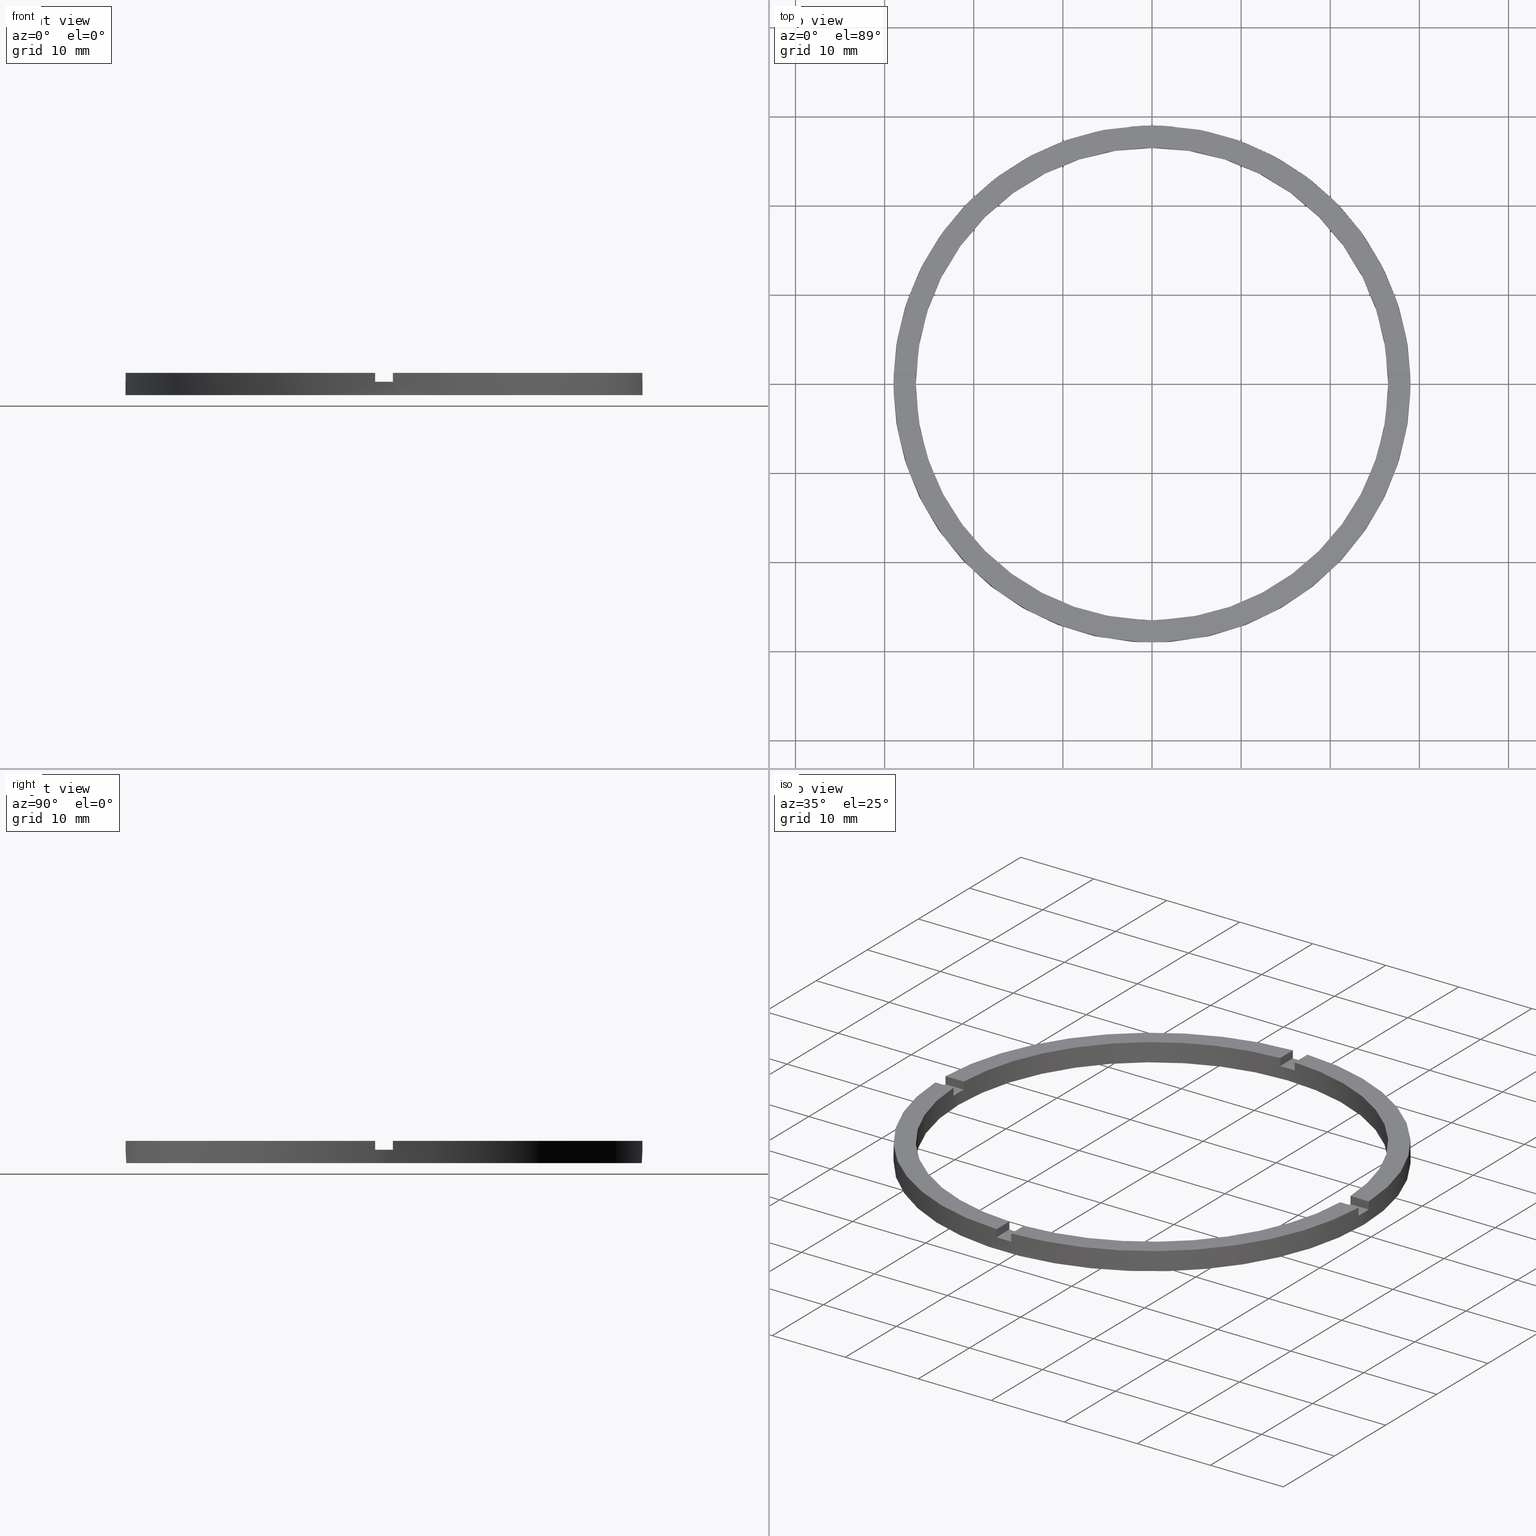
[diagram: canonical four-view strip — front | top / right | iso, engineering-drawing reading convention]
A machine part, canonical four-view strip (front | top / right | iso — engineering-drawing reading convention). The complete STEP part file that produces these views, byte-faithful:
ISO-10303-21;
HEADER;
FILE_DESCRIPTION (( 'STEP AP203' ),
    '1' );
FILE_NAME ('514120.step',
    '2024-12-26T02:39:25',
    ( 'MSI' ),
    ( '' ),
    'SwSTEP 2.0',
    'SolidWorks 2020',
    '' );
FILE_SCHEMA (( 'CONFIG_CONTROL_DESIGN' ));
ENDSEC;

DATA;
#1 = CARTESIAN_POINT ( 'NONE',  ( 0.000000000000000000, 0.000000000000000000, 1.500000000000000000 ) ) ;
#2 = EDGE_LOOP ( 'NONE', ( #548, #67, #28, #5 ) ) ;
#3 = PLANE ( 'NONE',  #770 ) ;
#4 = ORIENTED_EDGE ( 'NONE', *, *, #156, .T. ) ;
#5 = ORIENTED_EDGE ( 'NONE', *, *, #708, .F. ) ;
#6 = CARTESIAN_POINT ( 'NONE',  ( 0.000000000000000000, 0.000000000000000000, 2.500000000000000000 ) ) ;
#7 = ORIENTED_EDGE ( 'NONE', *, *, #596, .F. ) ;
#8 = CARTESIAN_POINT ( 'NONE',  ( 19.00000000000000000, 0.9999999999998427924, 1.500000000000000000 ) ) ;
#9 = DIRECTION ( 'NONE',  ( 1.301042606982605567E-16, -1.000000000000000000, 0.000000000000000000 ) ) ;
#10 = VERTEX_POINT ( 'NONE', #239 ) ;
#11 = DIRECTION ( 'NONE',  ( -0.000000000000000000, -0.000000000000000000, -1.000000000000000000 ) ) ;
#12 = AXIS2_PLACEMENT_3D ( 'NONE', #219, #165, #394 ) ;
#13 = EDGE_LOOP ( 'NONE', ( #38, #550, #335, #295 ) ) ;
#14 = ORIENTED_EDGE ( 'NONE', *, *, #747, .F. ) ;
#15 = DIRECTION ( 'NONE',  ( -1.000000000000000000, -1.301042606982605567E-16, 0.000000000000000000 ) ) ;
#16 = EDGE_LOOP ( 'NONE', ( #472, #334, #20, #308 ) ) ;
#17 = DIRECTION ( 'NONE',  ( 1.734723475976807341E-16, -1.000000000000000000, 0.000000000000000000 ) ) ;
#18 = ORIENTED_EDGE ( 'NONE', *, *, #492, .T. ) ;
#19 = DIRECTION ( 'NONE',  ( -0.000000000000000000, -0.000000000000000000, -1.000000000000000000 ) ) ;
#20 = ORIENTED_EDGE ( 'NONE', *, *, #119, .T. ) ;
#21 = EDGE_CURVE ( 'NONE', #65, #558, #81, .T. ) ;
#22 = EDGE_CURVE ( 'NONE', #461, #558, #599, .T. ) ;
#23 = ORIENTED_EDGE ( 'NONE', *, *, #641, .T. ) ;
#24 = ORIENTED_EDGE ( 'NONE', *, *, #453, .F. ) ;
#25 = VERTEX_POINT ( 'NONE', #476 ) ;
#26 = CARTESIAN_POINT ( 'NONE',  ( -19.00000000000018829, 0.9999999999999744649, 2.500000000000000000 ) ) ;
#27 = AXIS2_PLACEMENT_3D ( 'NONE', #452, #257, #744 ) ;
#28 = ORIENTED_EDGE ( 'NONE', *, *, #314, .F. ) ;
#29 = ORIENTED_EDGE ( 'NONE', *, *, #119, .F. ) ;
#30 = ORIENTED_EDGE ( 'NONE', *, *, #301, .F. ) ;
#31 = EDGE_LOOP ( 'NONE', ( #608, #46, #29, #534 ) ) ;
#32 = ORIENTED_EDGE ( 'NONE', *, *, #314, .T. ) ;
#33 = ORIENTED_EDGE ( 'NONE', *, *, #21, .T. ) ;
#34 = EDGE_CURVE ( 'NONE', #287, #344, #604, .T. ) ;
#35 = DIRECTION ( 'NONE',  ( -1.000000000000000000, -4.336808689942018352E-17, 0.000000000000000000 ) ) ;
#36 = ORIENTED_EDGE ( 'NONE', *, *, #100, .F. ) ;
#37 = CARTESIAN_POINT ( 'NONE',  ( 29.00000000000000000, 3.551475717527324030E-15, 2.500000000000000000 ) ) ;
#38 = ORIENTED_EDGE ( 'NONE', *, *, #529, .T. ) ;
#39 = ADVANCED_BREP_SHAPE_REPRESENTATION ( '514120', ( #370, #511 ), #519 ) ;
#40 = ADVANCED_FACE ( 'NONE', ( #353 ), #227, .T. ) ;
#41 = CARTESIAN_POINT ( 'NONE',  ( 28.98275349237887255, -1.000000000000156763, 1.500000000000000000 ) ) ;
#42 = CARTESIAN_POINT ( 'NONE',  ( 0.000000000000000000, 0.000000000000000000, 2.500000000000000000 ) ) ;
#43 = VERTEX_POINT ( 'NONE', #41 ) ;
#44 = EDGE_CURVE ( 'NONE', #445, #598, #85, .T. ) ;
#45 = ORIENTED_EDGE ( 'NONE', *, *, #249, .T. ) ;
#46 = ORIENTED_EDGE ( 'NONE', *, *, #229, .T. ) ;
#47 = CARTESIAN_POINT ( 'NONE',  ( 0.000000000000000000, 0.000000000000000000, 2.500000000000000000 ) ) ;
#48 = ORIENTED_EDGE ( 'NONE', *, *, #747, .T. ) ;
#49 = DIRECTION ( 'NONE',  ( 0.000000000000000000, 0.000000000000000000, 1.000000000000000000 ) ) ;
#50 = ORIENTED_EDGE ( 'NONE', *, *, #147, .T. ) ;
#51 = VERTEX_POINT ( 'NONE', #469 ) ;
#52 = SECURITY_CLASSIFICATION ( '', '', #765 ) ;
#53 = EDGE_LOOP ( 'NONE', ( #532, #315, #554, #477 ) ) ;
#54 = DIRECTION ( 'NONE',  ( 0.000000000000000000, 0.000000000000000000, 1.000000000000000000 ) ) ;
#55 = ORIENTED_EDGE ( 'NONE', *, *, #773, .F. ) ;
#56 = AXIS2_PLACEMENT_3D ( 'NONE', #284, #293, #769 ) ;
#57 = DIRECTION ( 'NONE',  ( 1.000000000000000000, 1.734723475976807341E-16, -0.000000000000000000 ) ) ;
#58 = ORIENTED_EDGE ( 'NONE', *, *, #506, .T. ) ;
#59 = VERTEX_POINT ( 'NONE', #634 ) ;
#60 = ORIENTED_EDGE ( 'NONE', *, *, #493, .F. ) ;
#61 = CARTESIAN_POINT ( 'NONE',  ( -26.50000000000000355, 0.000000000000000000, 2.500000000000000000 ) ) ;
#62 = VERTEX_POINT ( 'NONE', #573 ) ;
#63 = VERTEX_POINT ( 'NONE', #640 ) ;
#64 = ORIENTED_EDGE ( 'NONE', *, *, #290, .T. ) ;
#65 = VERTEX_POINT ( 'NONE', #567 ) ;
#66 = AXIS2_PLACEMENT_3D ( 'NONE', #414, #274, #749 ) ;
#67 = ORIENTED_EDGE ( 'NONE', *, *, #404, .T. ) ;
#68 = CARTESIAN_POINT ( 'NONE',  ( 0.000000000000000000, 0.000000000000000000, 0.000000000000000000 ) ) ;
#69 = ORIENTED_EDGE ( 'NONE', *, *, #767, .F. ) ;
#70 = ORIENTED_EDGE ( 'NONE', *, *, #767, .T. ) ;
#71 = ORIENTED_EDGE ( 'NONE', *, *, #197, .F. ) ;
#72 = ORIENTED_EDGE ( 'NONE', *, *, #44, .F. ) ;
#73 = CARTESIAN_POINT ( 'NONE',  ( 0.000000000000000000, 0.000000000000000000, 0.000000000000000000 ) ) ;
#74 = DIRECTION ( 'NONE',  ( 1.000000000000000000, 0.000000000000000000, 0.000000000000000000 ) ) ;
#75 = VERTEX_POINT ( 'NONE', #277 ) ;
#76 = PERSON ( 'δָ��', 'δָ��', 'δָ��', ('δָ��'), ('δָ��'), ('δָ��') ) ;
#77 = ORIENTED_EDGE ( 'NONE', *, *, #301, .T. ) ;
#78 = AXIS2_PLACEMENT_3D ( 'NONE', #382, #450, #498 ) ;
#79 = ORIENTED_EDGE ( 'NONE', *, *, #333, .F. ) ;
#80 = CARTESIAN_POINT ( 'NONE',  ( 29.00000000000000000, 3.551475717527324030E-15, 1.500000000000000000 ) ) ;
#81 = CIRCLE ( 'NONE', #56, 26.50000000000000355 ) ;
#82 = DIRECTION ( 'NONE',  ( 0.000000000000000000, 0.000000000000000000, 1.000000000000000000 ) ) ;
#83 = ORIENTED_EDGE ( 'NONE', *, *, #569, .T. ) ;
#84 = ORIENTED_EDGE ( 'NONE', *, *, #249, .F. ) ;
#85 = LINE ( 'NONE', #515, #347 ) ;
#86 = VECTOR ( 'NONE', #194, 1000.000000000000000 ) ;
#87 = CARTESIAN_POINT ( 'NONE',  ( 26.48112535373071807, -1.000000000000156986, 2.500000000000000000 ) ) ;
#88 = EDGE_LOOP ( 'NONE', ( #738, #728, #557, #526 ) ) ;
#89 = FACE_OUTER_BOUND ( 'NONE', #223, .T. ) ;
#90 = PLANE ( 'NONE',  #152 ) ;
#91 = ORIENTED_EDGE ( 'NONE', *, *, #776, .T. ) ;
#92 = PLANE ( 'NONE',  #636 ) ;
#93 = ORIENTED_EDGE ( 'NONE', *, *, #783, .T. ) ;
#94 = DIRECTION ( 'NONE',  ( -1.301042606982605567E-16, 1.000000000000000000, -0.000000000000000000 ) ) ;
#95 = CARTESIAN_POINT ( 'NONE',  ( -1.000000000000026645, 28.98275349237887610, 1.500000000000000000 ) ) ;
#96 = CC_DESIGN_PERSON_AND_ORGANIZATION_ASSIGNMENT ( #630, #732, ( #292 ) ) ;
#97 = EDGE_CURVE ( 'NONE', #332, #778, #601, .T. ) ;
#98 = DIRECTION ( 'NONE',  ( 1.301042606982605567E-16, -1.000000000000000000, 0.000000000000000000 ) ) ;
#99 = LINE ( 'NONE', #753, #368 ) ;
#100 = EDGE_CURVE ( 'NONE', #445, #568, #603, .T. ) ;
#101 = APPROVAL_PERSON_ORGANIZATION ( #112, #306, #202 ) ;
#102 = CARTESIAN_POINT ( 'NONE',  ( 0.000000000000000000, 0.000000000000000000, 2.500000000000000000 ) ) ;
#103 = COORDINATED_UNIVERSAL_TIME_OFFSET ( 8, 0, .AHEAD. ) ;
#104 = AXIS2_PLACEMENT_3D ( 'NONE', #1, #216, #400 ) ;
#105 = LINE ( 'NONE', #507, #642 ) ;
#106 = AXIS2_PLACEMENT_3D ( 'NONE', #541, #685, #724 ) ;
#107 = CALENDAR_DATE ( 2024, 26, 12 ) ;
#108 = DIRECTION ( 'NONE',  ( -0.000000000000000000, -1.000000000000000000, -0.000000000000000000 ) ) ;
#109 = LINE ( 'NONE', #467, #386 ) ;
#110 = COORDINATED_UNIVERSAL_TIME_OFFSET ( 8, 0, .AHEAD. ) ;
#111 = DIRECTION ( 'NONE',  ( 1.000000000000000000, 0.000000000000000000, 0.000000000000000000 ) ) ;
#112 = PERSON_AND_ORGANIZATION ( #76, #115 ) ;
#113 = CIRCLE ( 'NONE', #564, 26.50000000000000355 ) ;
#114 = DIRECTION ( 'NONE',  ( 1.301042606982605567E-16, -1.000000000000000000, 0.000000000000000000 ) ) ;
#115 = ORGANIZATION ( 'δָ��', 'δָ��', '' ) ;
#116 = ADVANCED_FACE ( 'NONE', ( #89 ), #150, .T. ) ;
#117 = LOCAL_TIME ( 10, 39, 25.00000000000000000, #635 ) ;
#118 = CARTESIAN_POINT ( 'NONE',  ( 0.9999999999999733546, 26.48112535373072518, 2.500000000000000000 ) ) ;
#119 = EDGE_CURVE ( 'NONE', #303, #778, #651, .T. ) ;
#120 = LINE ( 'NONE', #755, #372 ) ;
#121 = APPROVAL_ROLE ( '' ) ;
#122 = APPROVAL_PERSON_ORGANIZATION ( #365, #457, #121 ) ;
#123 = DIRECTION ( 'NONE',  ( 0.000000000000000000, 0.000000000000000000, 1.000000000000000000 ) ) ;
#124 = ADVANCED_FACE ( 'NONE', ( #135 ), #588, .F. ) ;
#125 = DATE_AND_TIME ( #618, #381 ) ;
#126 = EDGE_CURVE ( 'NONE', #454, #558, #657, .T. ) ;
#127 = PRODUCT_DEFINITION_FORMATION_WITH_SPECIFIED_SOURCE ( '�κ�', '', #146, .NOT_KNOWN. ) ;
#128 = CIRCLE ( 'NONE', #600, 26.50000000000000355 ) ;
#129 = DIRECTION ( 'NONE',  ( 0.000000000000000000, 0.000000000000000000, 1.000000000000000000 ) ) ;
#130 = CARTESIAN_POINT ( 'NONE',  ( 0.9999999999998391287, -19.00000000000018474, 1.500000000000000000 ) ) ;
#131 = CIRCLE ( 'NONE', #509, 29.00000000000000000 ) ;
#132 = DATE_TIME_ROLE ( 'classification_date' ) ;
#133 = CIRCLE ( 'NONE', #663, 29.00000000000000000 ) ;
#134 = DIRECTION ( 'NONE',  ( 1.000000000000000000, 0.000000000000000000, 0.000000000000000000 ) ) ;
#135 = FACE_OUTER_BOUND ( 'NONE', #88, .T. ) ;
#136 = VECTOR ( 'NONE', #464, 1000.000000000000000 ) ;
#137 = CC_DESIGN_PERSON_AND_ORGANIZATION_ASSIGNMENT ( #159, #447, ( #127 ) ) ;
#138 = VECTOR ( 'NONE', #177, 1000.000000000000000 ) ;
#139 = LINE ( 'NONE', #704, #143 ) ;
#140 = CARTESIAN_POINT ( 'NONE',  ( 0.9999999999998402389, -26.48112535373072873, 2.500000000000000000 ) ) ;
#141 = AXIS2_PLACEMENT_3D ( 'NONE', #218, #646, #338 ) ;
#142 = FACE_OUTER_BOUND ( 'NONE', #16, .T. ) ;
#143 = VECTOR ( 'NONE', #250, 1000.000000000000000 ) ;
#144 = DIRECTION ( 'NONE',  ( 1.000000000000000000, 0.000000000000000000, 0.000000000000000000 ) ) ;
#145 = VECTOR ( 'NONE', #652, 1000.000000000000000 ) ;
#146 = PRODUCT ( '514120', '514120', '', ( #585 ) ) ;
#147 = EDGE_CURVE ( 'NONE', #466, #62, #653, .T. ) ;
#148 = FACE_OUTER_BOUND ( 'NONE', #340, .T. ) ;
#149 = PLANE ( 'NONE',  #495 ) ;
#150 = CYLINDRICAL_SURFACE ( 'NONE', #590, 29.00000000000000000 ) ;
#151 = CIRCLE ( 'NONE', #671, 29.00000000000000000 ) ;
#152 = AXIS2_PLACEMENT_3D ( 'NONE', #711, #625, #35 ) ;
#153 = LINE ( 'NONE', #245, #415 ) ;
#154 = LINE ( 'NONE', #242, #662 ) ;
#155 = CARTESIAN_POINT ( 'NONE',  ( -1.000000000000159650, -28.98275349237887255, 2.500000000000000000 ) ) ;
#156 = EDGE_CURVE ( 'NONE', #25, #707, #169, .T. ) ;
#157 = LINE ( 'NONE', #735, #668 ) ;
#158 = CYLINDRICAL_SURFACE ( 'NONE', #380, 26.50000000000000355 ) ;
#159 = PERSON_AND_ORGANIZATION ( #76, #115 ) ;
#160 = PLANE ( 'NONE',  #436 ) ;
#161 = DIRECTION ( 'NONE',  ( 0.000000000000000000, 0.000000000000000000, 1.000000000000000000 ) ) ;
#162 = LINE ( 'NONE', #268, #679 ) ;
#163 = EDGE_CURVE ( 'NONE', #25, #609, #390, .T. ) ;
#164 = VECTOR ( 'NONE', #546, 1000.000000000000000 ) ;
#165 = DIRECTION ( 'NONE',  ( 0.000000000000000000, -0.000000000000000000, 1.000000000000000000 ) ) ;
#166 = VECTOR ( 'NONE', #187, 1000.000000000000000 ) ;
#167 = FACE_OUTER_BOUND ( 'NONE', #196, .T. ) ;
#168 = APPLICATION_CONTEXT ( 'configuration controlled 3d designs of mechanical parts and assemblies' ) ;
#169 = LINE ( 'NONE', #118, #655 ) ;
#170 = PERSON_AND_ORGANIZATION ( #76, #115 ) ;
#171 = DIRECTION ( 'NONE',  ( 0.000000000000000000, 0.000000000000000000, 1.000000000000000000 ) ) ;
#172 = VECTOR ( 'NONE', #9, 1000.000000000000000 ) ;
#173 = VECTOR ( 'NONE', #339, 1000.000000000000000 ) ;
#174 = VECTOR ( 'NONE', #371, 1000.000000000000000 ) ;
#175 = VECTOR ( 'NONE', #675, 1000.000000000000000 ) ;
#176 = PERSON_AND_ORGANIZATION ( #76, #115 ) ;
#177 = DIRECTION ( 'NONE',  ( -1.000000000000000000, -1.734723475976807341E-16, 0.000000000000000000 ) ) ;
#178 = FACE_OUTER_BOUND ( 'NONE', #266, .T. ) ;
#179 = FACE_OUTER_BOUND ( 'NONE', #459, .T. ) ;
#180 = LINE ( 'NONE', #777, #174 ) ;
#181 = DIRECTION ( 'NONE',  ( 1.000000000000000000, 1.734723475976807341E-16, 0.000000000000000000 ) ) ;
#182 = VECTOR ( 'NONE', #614, 1000.000000000000000 ) ;
#183 = CIRCLE ( 'NONE', #243, 29.00000000000000000 ) ;
#184 = CIRCLE ( 'NONE', #742, 29.00000000000000000 ) ;
#185 = EDGE_CURVE ( 'NONE', #461, #683, #654, .T. ) ;
#186 = AXIS2_PLACEMENT_3D ( 'NONE', #471, #17, #181 ) ;
#187 = DIRECTION ( 'NONE',  ( 0.000000000000000000, 1.000000000000000000, 0.000000000000000000 ) ) ;
#188 = CARTESIAN_POINT ( 'NONE',  ( 26.48112535373072873, 0.9999999999998430145, 2.500000000000000000 ) ) ;
#189 = VERTEX_POINT ( 'NONE', #359 ) ;
#190 = CARTESIAN_POINT ( 'NONE',  ( 0.9999999999999733546, 28.98275349237887966, 2.500000000000000000 ) ) ;
#191 = EDGE_CURVE ( 'NONE', #571, #598, #409, .T. ) ;
#192 = CARTESIAN_POINT ( 'NONE',  ( -1.000000000000160982, -19.00000000000018474, 1.500000000000000000 ) ) ;
#193 = AXIS2_PLACEMENT_3D ( 'NONE', #73, #377, #134 ) ;
#194 = DIRECTION ( 'NONE',  ( -0.000000000000000000, -0.000000000000000000, -1.000000000000000000 ) ) ;
#195 = DIRECTION ( 'NONE',  ( -1.000000000000000000, 0.000000000000000000, 0.000000000000000000 ) ) ;
#196 = EDGE_LOOP ( 'NONE', ( #544, #591, #737, #342, #316, #48, #473, #522, #291, #462, #312, #271 ) ) ;
#197 = EDGE_CURVE ( 'NONE', #707, #200, #670, .T. ) ;
#198 = CARTESIAN_POINT ( 'NONE',  ( -19.00000000000018829, -1.000000000000025535, 2.500000000000000000 ) ) ;
#199 = VERTEX_POINT ( 'NONE', #428 ) ;
#200 = VERTEX_POINT ( 'NONE', #190 ) ;
#201 = CARTESIAN_POINT ( 'NONE',  ( 0.000000000000000000, 0.000000000000000000, 2.500000000000000000 ) ) ;
#202 = APPROVAL_ROLE ( '' ) ;
#203 = DIRECTION ( 'NONE',  ( -0.000000000000000000, -1.000000000000000000, -0.000000000000000000 ) ) ;
#204 = EDGE_LOOP ( 'NONE', ( #555, #36, #270, #50 ) ) ;
#205 = EDGE_LOOP ( 'NONE', ( #71, #55, #60, #577 ) ) ;
#206 = VERTEX_POINT ( 'NONE', #285 ) ;
#207 = CARTESIAN_POINT ( 'NONE',  ( -1.000000000000026645, 26.48112535373072163, 2.500000000000000000 ) ) ;
#208 = CARTESIAN_POINT ( 'NONE',  ( 0.9999999999999733546, 19.00000000000000355, 1.500000000000000000 ) ) ;
#209 = AXIS2_PLACEMENT_3D ( 'NONE', #691, #501, #553 ) ;
#210 = DIRECTION ( 'NONE',  ( 1.000000000000000000, 0.000000000000000000, 0.000000000000000000 ) ) ;
#211 = AXIS2_PLACEMENT_3D ( 'NONE', #47, #54, #656 ) ;
#212 = DIRECTION ( 'NONE',  ( 1.000000000000000000, 0.000000000000000000, 0.000000000000000000 ) ) ;
#213 = CARTESIAN_POINT ( 'NONE',  ( 28.98275349237888321, 0.9999999999998432365, 2.500000000000000000 ) ) ;
#214 = CARTESIAN_POINT ( 'NONE',  ( 0.9999999999999733546, 26.48112535373072518, 2.500000000000000000 ) ) ;
#215 = ADVANCED_FACE ( 'NONE', ( #167 ), #158, .F. ) ;
#216 = DIRECTION ( 'NONE',  ( 0.000000000000000000, 0.000000000000000000, 1.000000000000000000 ) ) ;
#217 =( NAMED_UNIT ( * ) SI_UNIT ( $, .STERADIAN. ) SOLID_ANGLE_UNIT ( ) );
#218 = CARTESIAN_POINT ( 'NONE',  ( 0.000000000000000000, 0.000000000000000000, 2.500000000000000000 ) ) ;
#219 = CARTESIAN_POINT ( 'NONE',  ( 0.000000000000000000, 0.000000000000000000, 1.500000000000000000 ) ) ;
#220 =( NAMED_UNIT ( * ) PLANE_ANGLE_UNIT ( ) SI_UNIT ( $, .RADIAN. ) );
#221 = DIRECTION ( 'NONE',  ( 1.000000000000000000, 0.000000000000000000, -0.000000000000000000 ) ) ;
#222 = EDGE_CURVE ( 'NONE', #206, #454, #131, .T. ) ;
#223 = EDGE_LOOP ( 'NONE', ( #79, #531, #70, #594, #299, #7, #313, #597, #283, #337, #93, #589 ) ) ;
#224 = DIRECTION ( 'NONE',  ( 0.000000000000000000, 0.000000000000000000, 1.000000000000000000 ) ) ;
#225 = EDGE_LOOP ( 'NONE', ( #281, #58, #576, #543, #33, #539, #582, #545, #352, #72, #574, #30 ) ) ;
#226 = ADVANCED_FACE ( 'NONE', ( #417 ), #255, .T. ) ;
#227 = PLANE ( 'NONE',  #542 ) ;
#228 = CARTESIAN_POINT ( 'NONE',  ( -28.98275349237887966, 0.9999999999999726885, 2.500000000000000000 ) ) ;
#229 = EDGE_CURVE ( 'NONE', #189, #778, #133, .T. ) ;
#230 = SHAPE_DEFINITION_REPRESENTATION ( #478, #39 ) ;
#231 = DIRECTION ( 'NONE',  ( -1.000000000000000000, 0.000000000000000000, 0.000000000000000000 ) ) ;
#232 = CARTESIAN_POINT ( 'NONE',  ( 0.000000000000000000, 0.000000000000000000, 2.500000000000000000 ) ) ;
#233 = PLANE ( 'NONE',  #211 ) ;
#234 = PRODUCT_RELATED_PRODUCT_CATEGORY ( 'detail', '', ( #146 ) ) ;
#235 = DATE_AND_TIME ( #762, #488 ) ;
#236 = PERSON_AND_ORGANIZATION ( #76, #115 ) ;
#237 = ADVANCED_FACE ( 'NONE', ( #408 ), #743, .F. ) ;
#238 = AXIS2_PLACEMENT_3D ( 'NONE', #232, #774, #278 ) ;
#239 = CARTESIAN_POINT ( 'NONE',  ( -1.000000000000159872, -26.48112535373071807, 1.500000000000000000 ) ) ;
#240 = CARTESIAN_POINT ( 'NONE',  ( 0.9999999999999733546, 19.00000000000000355, 2.500000000000000000 ) ) ;
#241 = DIRECTION ( 'NONE',  ( 1.000000000000000000, 0.000000000000000000, 0.000000000000000000 ) ) ;
#242 = CARTESIAN_POINT ( 'NONE',  ( -26.48112535373072518, 0.9999999999999731326, 2.500000000000000000 ) ) ;
#243 = AXIS2_PLACEMENT_3D ( 'NONE', #297, #367, #483 ) ;
#244 = DATE_AND_TIME ( #490, #500 ) ;
#245 = CARTESIAN_POINT ( 'NONE',  ( 19.00000000000000000, -1.000000000000157208, 1.500000000000000000 ) ) ;
#246 = CARTESIAN_POINT ( 'NONE',  ( 19.00000000000000000, -1.000000000000157208, 2.500000000000000000 ) ) ;
#247 = DIRECTION ( 'NONE',  ( 0.000000000000000000, 0.000000000000000000, 1.000000000000000000 ) ) ;
#248 = AXIS2_PLACEMENT_3D ( 'NONE', #102, #649, #267 ) ;
#249 = EDGE_CURVE ( 'NONE', #683, #305, #416, .T. ) ;
#250 = DIRECTION ( 'NONE',  ( 0.000000000000000000, 0.000000000000000000, 1.000000000000000000 ) ) ;
#251 = DIRECTION ( 'NONE',  ( 0.000000000000000000, 0.000000000000000000, 1.000000000000000000 ) ) ;
#252 = EDGE_CURVE ( 'NONE', #75, #59, #420, .T. ) ;
#253 = ORIENTED_EDGE ( 'NONE', *, *, #547, .F. ) ;
#254 = CC_DESIGN_APPROVAL ( #457, ( #127 ) ) ;
#255 = PLANE ( 'NONE',  #209 ) ;
#256 = ORIENTED_EDGE ( 'NONE', *, *, #197, .T. ) ;
#257 = DIRECTION ( 'NONE',  ( 0.000000000000000000, 0.000000000000000000, 1.000000000000000000 ) ) ;
#258 = PERSON_AND_ORGANIZATION_ROLE ( 'design_owner' ) ;
#259 = CARTESIAN_POINT ( 'NONE',  ( 26.50000000000000355, 3.245314017740486554E-15, 0.000000000000000000 ) ) ;
#260 = CARTESIAN_POINT ( 'NONE',  ( -1.000000000000159872, -26.48112535373071807, 2.500000000000000000 ) ) ;
#261 = CC_DESIGN_DATE_AND_TIME_ASSIGNMENT ( #617, #592, ( #292 ) ) ;
#262 = DIRECTION ( 'NONE',  ( 1.000000000000000000, 0.000000000000000000, 0.000000000000000000 ) ) ;
#263 = AXIS2_PLACEMENT_3D ( 'NONE', #130, #763, #474 ) ;
#264 = DIRECTION ( 'NONE',  ( -0.000000000000000000, -0.000000000000000000, -1.000000000000000000 ) ) ;
#265 = AXIS2_PLACEMENT_3D ( 'NONE', #317, #684, #210 ) ;
#266 = EDGE_LOOP ( 'NONE', ( #276, #4, #256, #320 ) ) ;
#267 = DIRECTION ( 'NONE',  ( 1.000000000000000000, 0.000000000000000000, -0.000000000000000000 ) ) ;
#268 = CARTESIAN_POINT ( 'NONE',  ( -19.00000000000018829, 0.9999999999999744649, 1.500000000000000000 ) ) ;
#269 = ORIENTED_EDGE ( 'NONE', *, *, #783, .F. ) ;
#270 = ORIENTED_EDGE ( 'NONE', *, *, #725, .F. ) ;
#271 = ORIENTED_EDGE ( 'NONE', *, *, #432, .F. ) ;
#272 = ADVANCED_FACE ( 'NONE', ( #411 ), #92, .T. ) ;
#273 = VERTEX_POINT ( 'NONE', #259 ) ;
#274 = DIRECTION ( 'NONE',  ( -0.000000000000000000, -0.000000000000000000, -1.000000000000000000 ) ) ;
#275 = DIRECTION ( 'NONE',  ( -0.000000000000000000, -0.000000000000000000, -1.000000000000000000 ) ) ;
#276 = ORIENTED_EDGE ( 'NONE', *, *, #163, .F. ) ;
#277 = CARTESIAN_POINT ( 'NONE',  ( -1.000000000000026645, 26.48112535373072163, 2.500000000000000000 ) ) ;
#278 = DIRECTION ( 'NONE',  ( 1.000000000000000000, 0.000000000000000000, 0.000000000000000000 ) ) ;
#279 = ORIENTED_EDGE ( 'NONE', *, *, #758, .T. ) ;
#280 = ORIENTED_EDGE ( 'NONE', *, *, #499, .F. ) ;
#281 = ORIENTED_EDGE ( 'NONE', *, *, #524, .T. ) ;
#282 = CARTESIAN_POINT ( 'NONE',  ( 0.000000000000000000, 0.000000000000000000, 1.500000000000000000 ) ) ;
#283 = ORIENTED_EDGE ( 'NONE', *, *, #696, .T. ) ;
#284 = CARTESIAN_POINT ( 'NONE',  ( 0.000000000000000000, 0.000000000000000000, 1.500000000000000000 ) ) ;
#285 = CARTESIAN_POINT ( 'NONE',  ( -29.00000000000000000, 0.000000000000000000, 1.500000000000000000 ) ) ;
#286 = ORIENTED_EDGE ( 'NONE', *, *, #446, .F. ) ;
#287 = VERTEX_POINT ( 'NONE', #80 ) ;
#288 = VERTEX_POINT ( 'NONE', #213 ) ;
#289 = DIRECTION ( 'NONE',  ( 1.000000000000000000, 0.000000000000000000, -0.000000000000000000 ) ) ;
#290 = EDGE_CURVE ( 'NONE', #609, #713, #674, .T. ) ;
#291 = ORIENTED_EDGE ( 'NONE', *, *, #426, .F. ) ;
#292 = PRODUCT_DEFINITION ( 'δ֪', '', #127, #580 ) ;
#293 = DIRECTION ( 'NONE',  ( 0.000000000000000000, 0.000000000000000000, 1.000000000000000000 ) ) ;
#294 = EDGE_LOOP ( 'NONE', ( #326, #341 ) ) ;
#295 = ORIENTED_EDGE ( 'NONE', *, *, #696, .F. ) ;
#296 = VERTEX_POINT ( 'NONE', #626 ) ;
#297 = CARTESIAN_POINT ( 'NONE',  ( 0.000000000000000000, 0.000000000000000000, 1.500000000000000000 ) ) ;
#298 = DIRECTION ( 'NONE',  ( 0.000000000000000000, 0.000000000000000000, 1.000000000000000000 ) ) ;
#299 = ORIENTED_EDGE ( 'NONE', *, *, #702, .T. ) ;
#300 = ORIENTED_EDGE ( 'NONE', *, *, #229, .F. ) ;
#301 = EDGE_CURVE ( 'NONE', #323, #568, #139, .T. ) ;
#302 = ORIENTED_EDGE ( 'NONE', *, *, #465, .F. ) ;
#303 = VERTEX_POINT ( 'NONE', #632 ) ;
#304 = CARTESIAN_POINT ( 'NONE',  ( 0.000000000000000000, 0.000000000000000000, 0.000000000000000000 ) ) ;
#305 = VERTEX_POINT ( 'NONE', #407 ) ;
#306 = APPROVAL ( #565, 'δָ��' ) ;
#307 = CLOSED_SHELL ( 'NONE', ( #358, #752, #768, #40, #516, #361, #517, #116, #215, #715, #410, #226, #124, #764, #272, #751, #237, #350, #665, #575, #714 ) ) ;
#308 = ORIENTED_EDGE ( 'NONE', *, *, #97, .F. ) ;
#309 = ORIENTED_EDGE ( 'NONE', *, *, #453, .T. ) ;
#310 = CARTESIAN_POINT ( 'NONE',  ( -26.48112535373072163, -1.000000000000026867, 1.500000000000000000 ) ) ;
#311 = DIRECTION ( 'NONE',  ( 1.000000000000000000, 0.000000000000000000, 0.000000000000000000 ) ) ;
#312 = ORIENTED_EDGE ( 'NONE', *, *, #412, .T. ) ;
#313 = ORIENTED_EDGE ( 'NONE', *, *, #583, .T. ) ;
#314 = EDGE_CURVE ( 'NONE', #344, #775, #403, .T. ) ;
#315 = ORIENTED_EDGE ( 'NONE', *, *, #191, .T. ) ;
#316 = ORIENTED_EDGE ( 'NONE', *, *, #156, .F. ) ;
#317 = CARTESIAN_POINT ( 'NONE',  ( 0.000000000000000000, 0.000000000000000000, 1.500000000000000000 ) ) ;
#318 = ORIENTED_EDGE ( 'NONE', *, *, #503, .F. ) ;
#319 = AXIS2_PLACEMENT_3D ( 'NONE', #676, #443, #74 ) ;
#320 = ORIENTED_EDGE ( 'NONE', *, *, #492, .F. ) ;
#321 = ORIENTED_EDGE ( 'NONE', *, *, #547, .T. ) ;
#322 = EDGE_CURVE ( 'NONE', #63, #332, #162, .T. ) ;
#323 = VERTEX_POINT ( 'NONE', #351 ) ;
#324 = DIRECTION ( 'NONE',  ( -0.000000000000000000, -0.000000000000000000, -1.000000000000000000 ) ) ;
#325 = EDGE_LOOP ( 'NONE', ( #83, #611 ) ) ;
#326 = ORIENTED_EDGE ( 'NONE', *, *, #721, .F. ) ;
#327 = ORIENTED_EDGE ( 'NONE', *, *, #333, .T. ) ;
#328 = DIRECTION ( 'NONE',  ( 0.000000000000000000, 0.000000000000000000, 1.000000000000000000 ) ) ;
#329 = CARTESIAN_POINT ( 'NONE',  ( 0.000000000000000000, 0.000000000000000000, 1.500000000000000000 ) ) ;
#330 = ORIENTED_EDGE ( 'NONE', *, *, #34, .T. ) ;
#331 = PLANE ( 'NONE',  #12 ) ;
#332 = VERTEX_POINT ( 'NONE', #756 ) ;
#333 = EDGE_CURVE ( 'NONE', #287, #572, #648, .T. ) ;
#334 = ORIENTED_EDGE ( 'NONE', *, *, #426, .T. ) ;
#335 = ORIENTED_EDGE ( 'NONE', *, *, #126, .F. ) ;
#336 = CARTESIAN_POINT ( 'NONE',  ( 0.000000000000000000, 0.000000000000000000, 2.500000000000000000 ) ) ;
#337 = ORIENTED_EDGE ( 'NONE', *, *, #222, .F. ) ;
#338 = DIRECTION ( 'NONE',  ( 1.000000000000000000, 0.000000000000000000, 0.000000000000000000 ) ) ;
#339 = DIRECTION ( 'NONE',  ( -0.000000000000000000, -0.000000000000000000, -1.000000000000000000 ) ) ;
#340 = EDGE_LOOP ( 'NONE', ( #512, #330, #32, #302, #538, #309 ) ) ;
#341 = ORIENTED_EDGE ( 'NONE', *, *, #650, .F. ) ;
#342 = ORIENTED_EDGE ( 'NONE', *, *, #773, .T. ) ;
#343 = DIRECTION ( 'NONE',  ( 1.000000000000000000, 0.000000000000000000, 0.000000000000000000 ) ) ;
#344 = VERTEX_POINT ( 'NONE', #518 ) ;
#345 = AXIS2_PLACEMENT_3D ( 'NONE', #451, #620, #537 ) ;
#346 = ORIENTED_EDGE ( 'NONE', *, *, #97, .T. ) ;
#347 = VECTOR ( 'NONE', #627, 1000.000000000000000 ) ;
#348 = VECTOR ( 'NONE', #171, 1000.000000000000000 ) ;
#349 = DIRECTION ( 'NONE',  ( 0.000000000000000000, 0.000000000000000000, 1.000000000000000000 ) ) ;
#350 = ADVANCED_FACE ( 'NONE', ( #148 ), #766, .T. ) ;
#351 = CARTESIAN_POINT ( 'NONE',  ( 26.48112535373071807, -1.000000000000156986, 1.500000000000000000 ) ) ;
#352 = ORIENTED_EDGE ( 'NONE', *, *, #690, .T. ) ;
#353 = FACE_OUTER_BOUND ( 'NONE', #205, .T. ) ;
#354 = ORIENTED_EDGE ( 'NONE', *, *, #708, .T. ) ;
#355 = AXIS2_PLACEMENT_3D ( 'NONE', #201, #251, #241 ) ;
#356 = ORIENTED_EDGE ( 'NONE', *, *, #185, .F. ) ;
#357 = DIRECTION ( 'NONE',  ( 1.000000000000000000, 0.000000000000000000, 0.000000000000000000 ) ) ;
#358 = ADVANCED_FACE ( 'NONE', ( #398 ), #421, .F. ) ;
#359 = CARTESIAN_POINT ( 'NONE',  ( -1.000000000000026645, 28.98275349237887610, 2.500000000000000000 ) ) ;
#360 = CARTESIAN_POINT ( 'NONE',  ( 0.000000000000000000, 0.000000000000000000, 2.500000000000000000 ) ) ;
#361 = ADVANCED_FACE ( 'NONE', ( #418 ), #233, .T. ) ;
#362 = AXIS2_PLACEMENT_3D ( 'NONE', #402, #628, #706 ) ;
#363 = EDGE_CURVE ( 'NONE', #10, #51, #395, .T. ) ;
#364 = LOCAL_TIME ( 10, 39, 25.00000000000000000, #110 ) ;
#365 = PERSON_AND_ORGANIZATION ( #76, #115 ) ;
#366 = DATE_AND_TIME ( #107, #364 ) ;
#367 = DIRECTION ( 'NONE',  ( 0.000000000000000000, 0.000000000000000000, 1.000000000000000000 ) ) ;
#368 = VECTOR ( 'NONE', #643, 1000.000000000000000 ) ;
#369 = FACE_OUTER_BOUND ( 'NONE', #2, .T. ) ;
#370 = MANIFOLD_SOLID_BREP ( '�г�-����1', #307 ) ;
#371 = DIRECTION ( 'NONE',  ( -0.000000000000000000, -0.000000000000000000, -1.000000000000000000 ) ) ;
#372 = VECTOR ( 'NONE', #94, 1000.000000000000000 ) ;
#373 = DIRECTION ( 'NONE',  ( 1.000000000000000000, 0.000000000000000000, 0.000000000000000000 ) ) ;
#374 = LINE ( 'NONE', #405, #384 ) ;
#375 = PERSON_AND_ORGANIZATION ( #76, #115 ) ;
#376 = LINE ( 'NONE', #638, #645 ) ;
#377 = DIRECTION ( 'NONE',  ( 0.000000000000000000, 0.000000000000000000, 1.000000000000000000 ) ) ;
#378 = DIRECTION ( 'NONE',  ( -0.000000000000000000, -0.000000000000000000, -1.000000000000000000 ) ) ;
#379 = APPROVAL_DATE_TIME ( #366, #306 ) ;
#380 = AXIS2_PLACEMENT_3D ( 'NONE', #360, #521, #195 ) ;
#381 = LOCAL_TIME ( 10, 39, 25.00000000000000000, #103 ) ;
#382 = CARTESIAN_POINT ( 'NONE',  ( -1.000000000000026645, 19.00000000000000355, 1.500000000000000000 ) ) ;
#383 = APPROVAL_DATE_TIME ( #125, #457 ) ;
#384 = VECTOR ( 'NONE', #108, 1000.000000000000000 ) ;
#385 = CYLINDRICAL_SURFACE ( 'NONE', #66, 29.00000000000000000 ) ;
#386 = VECTOR ( 'NONE', #264, 1000.000000000000000 ) ;
#387 = CARTESIAN_POINT ( 'NONE',  ( 26.48112535373072873, 0.9999999999998430145, 2.500000000000000000 ) ) ;
#388 = AXIS2_PLACEMENT_3D ( 'NONE', #282, #424, #289 ) ;
#389 = FACE_OUTER_BOUND ( 'NONE', #13, .T. ) ;
#390 = LINE ( 'NONE', #595, #166 ) ;
#391 = DIRECTION ( 'NONE',  ( 0.000000000000000000, -0.000000000000000000, 1.000000000000000000 ) ) ;
#392 = VECTOR ( 'NONE', #114, 1000.000000000000000 ) ;
#393 = DIRECTION ( 'NONE',  ( 1.000000000000000000, 0.000000000000000000, 0.000000000000000000 ) ) ;
#394 = DIRECTION ( 'NONE',  ( 1.000000000000000000, 0.000000000000000000, -0.000000000000000000 ) ) ;
#395 = LINE ( 'NONE', #192, #392 ) ;
#396 = VECTOR ( 'NONE', #496, 1000.000000000000000 ) ;
#397 = APPLICATION_PROTOCOL_DEFINITION ( 'international standard', 'config_control_design', 1994, #513 ) ;
#398 = FACE_OUTER_BOUND ( 'NONE', #225, .T. ) ;
#399 = VECTOR ( 'NONE', #718, 1000.000000000000000 ) ;
#400 = DIRECTION ( 'NONE',  ( 1.000000000000000000, 0.000000000000000000, 0.000000000000000000 ) ) ;
#401 = AXIS2_PLACEMENT_3D ( 'NONE', #444, #693, #549 ) ;
#402 = CARTESIAN_POINT ( 'NONE',  ( 0.000000000000000000, 0.000000000000000000, 1.500000000000000000 ) ) ;
#403 = LINE ( 'NONE', #8, #136 ) ;
#404 = EDGE_CURVE ( 'NONE', #586, #775, #647, .T. ) ;
#405 = CARTESIAN_POINT ( 'NONE',  ( -1.000000000000026645, 19.00000000000000355, 1.500000000000000000 ) ) ;
#406 = VECTOR ( 'NONE', #448, 1000.000000000000000 ) ;
#407 = CARTESIAN_POINT ( 'NONE',  ( -1.000000000000159650, -28.98275349237887255, 2.500000000000000000 ) ) ;
#408 = FACE_OUTER_BOUND ( 'NONE', #771, .T. ) ;
#409 = LINE ( 'NONE', #480, #145 ) ;
#410 = ADVANCED_FACE ( 'NONE', ( #142 ), #484, .F. ) ;
#411 = FACE_OUTER_BOUND ( 'NONE', #53, .T. ) ;
#412 = EDGE_CURVE ( 'NONE', #65, #722, #419, .T. ) ;
#413 = APPROVAL ( #760, 'δָ��' ) ;
#414 = CARTESIAN_POINT ( 'NONE',  ( 0.000000000000000000, 0.000000000000000000, 2.500000000000000000 ) ) ;
#415 = VECTOR ( 'NONE', #489, 1000.000000000000000 ) ;
#416 = LINE ( 'NONE', #698, #172 ) ;
#417 = FACE_OUTER_BOUND ( 'NONE', #468, .T. ) ;
#418 = FACE_OUTER_BOUND ( 'NONE', #587, .T. ) ;
#419 = LINE ( 'NONE', #61, #666 ) ;
#420 = LINE ( 'NONE', #207, #396 ) ;
#421 = CYLINDRICAL_SURFACE ( 'NONE', #687, 26.50000000000000355 ) ;
#422 = CC_DESIGN_PERSON_AND_ORGANIZATION_ASSIGNMENT ( #176, #605, ( #52 ) ) ;
#423 = VECTOR ( 'NONE', #11, 1000.000000000000000 ) ;
#424 = DIRECTION ( 'NONE',  ( 0.000000000000000000, 0.000000000000000000, 1.000000000000000000 ) ) ;
#425 = CIRCLE ( 'NONE', #265, 29.00000000000000000 ) ;
#426 = EDGE_CURVE ( 'NONE', #63, #303, #154, .T. ) ;
#427 = CARTESIAN_POINT ( 'NONE',  ( -26.48112535373072163, -1.000000000000026867, 2.500000000000000000 ) ) ;
#428 = CARTESIAN_POINT ( 'NONE',  ( 26.50000000000000355, 3.245314017740486554E-15, 1.500000000000000000 ) ) ;
#429 = FACE_BOUND ( 'NONE', #325, .T. ) ;
#430 = FACE_OUTER_BOUND ( 'NONE', #294, .T. ) ;
#431 = VECTOR ( 'NONE', #203, 1000.000000000000000 ) ;
#432 = EDGE_CURVE ( 'NONE', #273, #722, #664, .T. ) ;
#433 = CIRCLE ( 'NONE', #401, 26.50000000000000355 ) ;
#434 = CARTESIAN_POINT ( 'NONE',  ( 0.000000000000000000, 0.000000000000000000, 1.500000000000000000 ) ) ;
#435 = LINE ( 'NONE', #198, #175 ) ;
#436 = AXIS2_PLACEMENT_3D ( 'NONE', #504, #15, #98 ) ;
#437 = LINE ( 'NONE', #155, #182 ) ;
#438 = AXIS2_PLACEMENT_3D ( 'NONE', #535, #612, #373 ) ;
#439 = VECTOR ( 'NONE', #527, 1000.000000000000000 ) ;
#440 = PLANE ( 'NONE',  #27 ) ;
#441 = CIRCLE ( 'NONE', #362, 26.50000000000000355 ) ;
#442 = EDGE_LOOP ( 'NONE', ( #64, #279, #14, #530 ) ) ;
#443 = DIRECTION ( 'NONE',  ( 0.000000000000000000, 0.000000000000000000, 1.000000000000000000 ) ) ;
#444 = CARTESIAN_POINT ( 'NONE',  ( 0.000000000000000000, 0.000000000000000000, 1.500000000000000000 ) ) ;
#445 = VERTEX_POINT ( 'NONE', #140 ) ;
#446 = EDGE_CURVE ( 'NONE', #288, #200, #151, .T. ) ;
#447 = PERSON_AND_ORGANIZATION_ROLE ( 'creator' ) ;
#448 = DIRECTION ( 'NONE',  ( -0.000000000000000000, -0.000000000000000000, -1.000000000000000000 ) ) ;
#449 = CARTESIAN_POINT ( 'NONE',  ( 0.000000000000000000, 0.000000000000000000, 1.500000000000000000 ) ) ;
#450 = DIRECTION ( 'NONE',  ( -1.000000000000000000, 0.000000000000000000, 0.000000000000000000 ) ) ;
#451 = CARTESIAN_POINT ( 'NONE',  ( 19.00000000000000000, -1.000000000000157208, 1.500000000000000000 ) ) ;
#452 = CARTESIAN_POINT ( 'NONE',  ( 0.000000000000000000, 0.000000000000000000, 2.500000000000000000 ) ) ;
#453 = EDGE_CURVE ( 'NONE', #323, #43, #153, .T. ) ;
#454 = VERTEX_POINT ( 'NONE', #731 ) ;
#455 = DIRECTION ( 'NONE',  ( 1.000000000000000000, 0.000000000000000000, 0.000000000000000000 ) ) ;
#456 = CARTESIAN_POINT ( 'NONE',  ( -28.98275349237887610, -1.000000000000027311, 2.500000000000000000 ) ) ;
#457 = APPROVAL ( #491, 'δָ��' ) ;
#458 = CARTESIAN_POINT ( 'NONE',  ( 0.000000000000000000, 0.000000000000000000, 1.500000000000000000 ) ) ;
#459 = EDGE_LOOP ( 'NONE', ( #523, #581, #514, #253 ) ) ;
#460 = DIRECTION ( 'NONE',  ( -0.000000000000000000, -0.000000000000000000, -1.000000000000000000 ) ) ;
#461 = VERTEX_POINT ( 'NONE', #779 ) ;
#462 = ORIENTED_EDGE ( 'NONE', *, *, #503, .T. ) ;
#463 = CARTESIAN_POINT ( 'NONE',  ( 0.000000000000000000, 0.000000000000000000, 0.000000000000000000 ) ) ;
#464 = DIRECTION ( 'NONE',  ( -1.000000000000000000, -4.336808689942018352E-17, -0.000000000000000000 ) ) ;
#465 = EDGE_CURVE ( 'NONE', #199, #775, #667, .T. ) ;
#466 = VERTEX_POINT ( 'NONE', #678 ) ;
#467 = CARTESIAN_POINT ( 'NONE',  ( -29.00000000000000000, 0.000000000000000000, 2.500000000000000000 ) ) ;
#468 = EDGE_LOOP ( 'NONE', ( #481, #566, #570, #533, #318, #579 ) ) ;
#469 = CARTESIAN_POINT ( 'NONE',  ( -1.000000000000159650, -28.98275349237887255, 1.500000000000000000 ) ) ;
#470 = DIRECTION ( 'NONE',  ( 0.000000000000000000, 0.000000000000000000, 1.000000000000000000 ) ) ;
#471 = CARTESIAN_POINT ( 'NONE',  ( -19.00000000000018829, -1.000000000000025535, 1.500000000000000000 ) ) ;
#472 = ORIENTED_EDGE ( 'NONE', *, *, #322, .F. ) ;
#473 = ORIENTED_EDGE ( 'NONE', *, *, #252, .F. ) ;
#474 = DIRECTION ( 'NONE',  ( -1.301042606982605567E-16, 1.000000000000000000, 0.000000000000000000 ) ) ;
#475 = CARTESIAN_POINT ( 'NONE',  ( 0.000000000000000000, 0.000000000000000000, 2.500000000000000000 ) ) ;
#476 = CARTESIAN_POINT ( 'NONE',  ( 0.9999999999999733546, 26.48112535373072518, 1.500000000000000000 ) ) ;
#477 = ORIENTED_EDGE ( 'NONE', *, *, #363, .T. ) ;
#478 = PRODUCT_DEFINITION_SHAPE ( 'NONE', 'NONE',  #292 ) ;
#479 = AXIS2_PLACEMENT_3D ( 'NONE', #434, #520, #659 ) ;
#480 = CARTESIAN_POINT ( 'NONE',  ( 0.9999999999998391287, -19.00000000000018474, 1.500000000000000000 ) ) ;
#481 = ORIENTED_EDGE ( 'NONE', *, *, #499, .T. ) ;
#482 = APPROVAL_ROLE ( '' ) ;
#483 = DIRECTION ( 'NONE',  ( 1.000000000000000000, 0.000000000000000000, 0.000000000000000000 ) ) ;
#484 = PLANE ( 'NONE',  #106 ) ;
#485 = CC_DESIGN_APPROVAL ( #413, ( #52 ) ) ;
#486 = AXIS2_PLACEMENT_3D ( 'NONE', #329, #505, #739 ) ;
#487 = CARTESIAN_POINT ( 'NONE',  ( -28.98275349237887610, -1.000000000000027311, 2.500000000000000000 ) ) ;
#488 = LOCAL_TIME ( 10, 39, 25.00000000000000000, #748 ) ;
#489 = DIRECTION ( 'NONE',  ( 1.000000000000000000, 4.336808689942018352E-17, 0.000000000000000000 ) ) ;
#490 = CALENDAR_DATE ( 2024, 26, 12 ) ;
#491 = APPROVAL_STATUS ( 'not_yet_approved' ) ;
#492 = EDGE_CURVE ( 'NONE', #609, #200, #157, .T. ) ;
#493 = EDGE_CURVE ( 'NONE', #288, #586, #672, .T. ) ;
#494 = CARTESIAN_POINT ( 'NONE',  ( -1.000000000000026645, 28.98275349237887610, 2.500000000000000000 ) ) ;
#495 = AXIS2_PLACEMENT_3D ( 'NONE', #208, #616, #540 ) ;
#496 = DIRECTION ( 'NONE',  ( -0.000000000000000000, -0.000000000000000000, -1.000000000000000000 ) ) ;
#497 = CARTESIAN_POINT ( 'NONE',  ( 19.00000000000000000, 0.9999999999998427924, 2.500000000000000000 ) ) ;
#498 = DIRECTION ( 'NONE',  ( 0.000000000000000000, 0.000000000000000000, 1.000000000000000000 ) ) ;
#499 = EDGE_CURVE ( 'NONE', #332, #206, #673, .T. ) ;
#500 = LOCAL_TIME ( 10, 39, 25.00000000000000000, #680 ) ;
#501 = DIRECTION ( 'NONE',  ( 0.000000000000000000, 0.000000000000000000, 1.000000000000000000 ) ) ;
#502 = DIRECTION ( 'NONE',  ( 1.000000000000000000, 0.000000000000000000, 0.000000000000000000 ) ) ;
#503 = EDGE_CURVE ( 'NONE', #63, #65, #433, .T. ) ;
#504 = CARTESIAN_POINT ( 'NONE',  ( -1.000000000000160982, -19.00000000000018474, 1.500000000000000000 ) ) ;
#505 = DIRECTION ( 'NONE',  ( 0.000000000000000000, -0.000000000000000000, 1.000000000000000000 ) ) ;
#506 = EDGE_CURVE ( 'NONE', #199, #273, #180, .T. ) ;
#507 = CARTESIAN_POINT ( 'NONE',  ( 28.98275349237888321, 0.9999999999998432365, 2.500000000000000000 ) ) ;
#508 = APPLICATION_PROTOCOL_DEFINITION ( 'international standard', 'config_control_design', 1994, #168 ) ;
#509 = AXIS2_PLACEMENT_3D ( 'NONE', #602, #660, #723 ) ;
#510 = CARTESIAN_POINT ( 'NONE',  ( 26.48112535373072873, 0.9999999999998430145, 1.500000000000000000 ) ) ;
#511 = AXIS2_PLACEMENT_3D ( 'NONE', #578, #470, #357 ) ;
#512 = ORIENTED_EDGE ( 'NONE', *, *, #633, .T. ) ;
#513 = APPLICATION_CONTEXT ( 'configuration controlled 3d designs of mechanical parts and assemblies' ) ;
#514 = ORIENTED_EDGE ( 'NONE', *, *, #758, .F. ) ;
#515 = CARTESIAN_POINT ( 'NONE',  ( 0.9999999999998402389, -26.48112535373072873, 2.500000000000000000 ) ) ;
#516 = ADVANCED_FACE ( 'NONE', ( #692 ), #440, .T. ) ;
#517 = ADVANCED_FACE ( 'NONE', ( #430, #429 ), #3, .F. ) ;
#518 = CARTESIAN_POINT ( 'NONE',  ( 28.98275349237888321, 0.9999999999998432365, 1.500000000000000000 ) ) ;
#519 =( GEOMETRIC_REPRESENTATION_CONTEXT ( 3 ) GLOBAL_UNCERTAINTY_ASSIGNED_CONTEXT ( ( #772 ) ) GLOBAL_UNIT_ASSIGNED_CONTEXT ( ( #703, #220, #217 ) ) REPRESENTATION_CONTEXT ( 'NONE', 'WORKASPACE' ) );
#520 = DIRECTION ( 'NONE',  ( 0.000000000000000000, 0.000000000000000000, 1.000000000000000000 ) ) ;
#521 = DIRECTION ( 'NONE',  ( -0.000000000000000000, -0.000000000000000000, -1.000000000000000000 ) ) ;
#522 = ORIENTED_EDGE ( 'NONE', *, *, #615, .T. ) ;
#523 = ORIENTED_EDGE ( 'NONE', *, *, #610, .T. ) ;
#524 = EDGE_CURVE ( 'NONE', #323, #199, #686, .T. ) ;
#525 = ORIENTED_EDGE ( 'NONE', *, *, #290, .F. ) ;
#526 = ORIENTED_EDGE ( 'NONE', *, *, #702, .F. ) ;
#527 = DIRECTION ( 'NONE',  ( 1.000000000000000000, 4.336808689942018352E-17, 0.000000000000000000 ) ) ;
#528 = ORIENTED_EDGE ( 'NONE', *, *, #583, .F. ) ;
#529 = EDGE_CURVE ( 'NONE', #563, #461, #435, .T. ) ;
#530 = ORIENTED_EDGE ( 'NONE', *, *, #163, .T. ) ;
#531 = ORIENTED_EDGE ( 'NONE', *, *, #633, .F. ) ;
#532 = ORIENTED_EDGE ( 'NONE', *, *, #596, .T. ) ;
#533 = ORIENTED_EDGE ( 'NONE', *, *, #21, .F. ) ;
#534 = ORIENTED_EDGE ( 'NONE', *, *, #615, .F. ) ;
#535 = CARTESIAN_POINT ( 'NONE',  ( 0.000000000000000000, 0.000000000000000000, 1.500000000000000000 ) ) ;
#536 = CC_DESIGN_SECURITY_CLASSIFICATION ( #52, ( #127 ) ) ;
#537 = DIRECTION ( 'NONE',  ( 1.000000000000000000, 4.336808689942018352E-17, 0.000000000000000000 ) ) ;
#538 = ORIENTED_EDGE ( 'NONE', *, *, #524, .F. ) ;
#539 = ORIENTED_EDGE ( 'NONE', *, *, #22, .F. ) ;
#540 = DIRECTION ( 'NONE',  ( 0.000000000000000000, 0.000000000000000000, -1.000000000000000000 ) ) ;
#541 = CARTESIAN_POINT ( 'NONE',  ( -19.00000000000018829, 0.9999999999999744649, 1.500000000000000000 ) ) ;
#542 = AXIS2_PLACEMENT_3D ( 'NONE', #712, #560, #221 ) ;
#543 = ORIENTED_EDGE ( 'NONE', *, *, #412, .F. ) ;
#544 = ORIENTED_EDGE ( 'NONE', *, *, #506, .F. ) ;
#545 = ORIENTED_EDGE ( 'NONE', *, *, #730, .F. ) ;
#546 = DIRECTION ( 'NONE',  ( -1.000000000000000000, -4.336808689942018352E-17, -0.000000000000000000 ) ) ;
#547 = EDGE_CURVE ( 'NONE', #189, #713, #694, .T. ) ;
#548 = ORIENTED_EDGE ( 'NONE', *, *, #493, .T. ) ;
#549 = DIRECTION ( 'NONE',  ( 1.000000000000000000, 0.000000000000000000, 0.000000000000000000 ) ) ;
#550 = ORIENTED_EDGE ( 'NONE', *, *, #22, .T. ) ;
#551 = ORIENTED_EDGE ( 'NONE', *, *, #730, .T. ) ;
#552 = AXIS2_PLACEMENT_3D ( 'NONE', #701, #82, #502 ) ;
#553 = DIRECTION ( 'NONE',  ( 1.000000000000000000, 0.000000000000000000, -0.000000000000000000 ) ) ;
#554 = ORIENTED_EDGE ( 'NONE', *, *, #690, .F. ) ;
#555 = ORIENTED_EDGE ( 'NONE', *, *, #641, .F. ) ;
#556 = CARTESIAN_POINT ( 'NONE',  ( 0.9999999999998402389, -26.48112535373072873, 1.500000000000000000 ) ) ;
#557 = ORIENTED_EDGE ( 'NONE', *, *, #191, .F. ) ;
#558 = VERTEX_POINT ( 'NONE', #310 ) ;
#559 = ORIENTED_EDGE ( 'NONE', *, *, #34, .F. ) ;
#560 = DIRECTION ( 'NONE',  ( 0.000000000000000000, 0.000000000000000000, 1.000000000000000000 ) ) ;
#561 = EDGE_LOOP ( 'NONE', ( #559, #327, #562, #269, #280, #346, #300, #321, #525, #18, #286, #354 ) ) ;
#562 = ORIENTED_EDGE ( 'NONE', *, *, #650, .T. ) ;
#563 = VERTEX_POINT ( 'NONE', #487 ) ;
#564 = AXIS2_PLACEMENT_3D ( 'NONE', #458, #391, #343 ) ;
#565 = APPROVAL_STATUS ( 'not_yet_approved' ) ;
#566 = ORIENTED_EDGE ( 'NONE', *, *, #222, .T. ) ;
#567 = CARTESIAN_POINT ( 'NONE',  ( -26.50000000000000355, 0.000000000000000000, 1.500000000000000000 ) ) ;
#568 = VERTEX_POINT ( 'NONE', #87 ) ;
#569 = EDGE_CURVE ( 'NONE', #722, #273, #697, .T. ) ;
#570 = ORIENTED_EDGE ( 'NONE', *, *, #126, .T. ) ;
#571 = VERTEX_POINT ( 'NONE', #733 ) ;
#572 = VERTEX_POINT ( 'NONE', #780 ) ;
#573 = CARTESIAN_POINT ( 'NONE',  ( 28.98275349237887255, -1.000000000000156763, 2.500000000000000000 ) ) ;
#574 = ORIENTED_EDGE ( 'NONE', *, *, #100, .T. ) ;
#575 = ADVANCED_FACE ( 'NONE', ( #178 ), #149, .F. ) ;
#576 = ORIENTED_EDGE ( 'NONE', *, *, #569, .F. ) ;
#577 = ORIENTED_EDGE ( 'NONE', *, *, #446, .T. ) ;
#578 = CARTESIAN_POINT ( 'NONE',  ( 0.000000000000000000, 0.000000000000000000, 0.000000000000000000 ) ) ;
#579 = ORIENTED_EDGE ( 'NONE', *, *, #322, .T. ) ;
#580 = DESIGN_CONTEXT ( 'detailed design', #168, 'design' ) ;
#581 = ORIENTED_EDGE ( 'NONE', *, *, #252, .T. ) ;
#582 = ORIENTED_EDGE ( 'NONE', *, *, #185, .T. ) ;
#583 = EDGE_CURVE ( 'NONE', #51, #305, #437, .T. ) ;
#584 = ORIENTED_EDGE ( 'NONE', *, *, #529, .F. ) ;
#585 = MECHANICAL_CONTEXT ( 'NONE', #513, 'mechanical' ) ;
#586 = VERTEX_POINT ( 'NONE', #387 ) ;
#587 = EDGE_LOOP ( 'NONE', ( #84, #356, #584, #91 ) ) ;
#588 = PLANE ( 'NONE',  #263 ) ;
#589 = ORIENTED_EDGE ( 'NONE', *, *, #721, .T. ) ;
#590 = AXIS2_PLACEMENT_3D ( 'NONE', #709, #460, #231 ) ;
#591 = ORIENTED_EDGE ( 'NONE', *, *, #465, .T. ) ;
#592 = DATE_TIME_ROLE ( 'creation_date' ) ;
#593 = EDGE_LOOP ( 'NONE', ( #740, #551, #45, #528 ) ) ;
#594 = ORIENTED_EDGE ( 'NONE', *, *, #147, .F. ) ;
#595 = CARTESIAN_POINT ( 'NONE',  ( 0.9999999999999733546, 19.00000000000000355, 1.500000000000000000 ) ) ;
#596 = EDGE_CURVE ( 'NONE', #51, #571, #425, .T. ) ;
#597 = ORIENTED_EDGE ( 'NONE', *, *, #776, .F. ) ;
#598 = VERTEX_POINT ( 'NONE', #556 ) ;
#599 = LINE ( 'NONE', #427, #86 ) ;
#600 = AXIS2_PLACEMENT_3D ( 'NONE', #6, #224, #212 ) ;
#601 = LINE ( 'NONE', #705, #348 ) ;
#602 = CARTESIAN_POINT ( 'NONE',  ( 0.000000000000000000, 0.000000000000000000, 1.500000000000000000 ) ) ;
#603 = CIRCLE ( 'NONE', #141, 26.50000000000000355 ) ;
#604 = CIRCLE ( 'NONE', #479, 29.00000000000000000 ) ;
#605 = PERSON_AND_ORGANIZATION_ROLE ( 'classification_officer' ) ;
#606 = DIRECTION ( 'NONE',  ( 0.000000000000000000, 0.000000000000000000, 1.000000000000000000 ) ) ;
#607 = CARTESIAN_POINT ( 'NONE',  ( 0.000000000000000000, 0.000000000000000000, 2.500000000000000000 ) ) ;
#608 = ORIENTED_EDGE ( 'NONE', *, *, #610, .F. ) ;
#609 = VERTEX_POINT ( 'NONE', #669 ) ;
#610 = EDGE_CURVE ( 'NONE', #189, #75, #682, .T. ) ;
#611 = ORIENTED_EDGE ( 'NONE', *, *, #432, .T. ) ;
#612 = DIRECTION ( 'NONE',  ( 0.000000000000000000, 0.000000000000000000, 1.000000000000000000 ) ) ;
#613 = CARTESIAN_POINT ( 'NONE',  ( 0.000000000000000000, 0.000000000000000000, 2.500000000000000000 ) ) ;
#614 = DIRECTION ( 'NONE',  ( 0.000000000000000000, 0.000000000000000000, 1.000000000000000000 ) ) ;
#615 = EDGE_CURVE ( 'NONE', #75, #303, #695, .T. ) ;
#616 = DIRECTION ( 'NONE',  ( 1.000000000000000000, -0.000000000000000000, 0.000000000000000000 ) ) ;
#617 = DATE_AND_TIME ( #621, #117 ) ;
#618 = CALENDAR_DATE ( 2024, 26, 12 ) ;
#619 = FACE_OUTER_BOUND ( 'NONE', #442, .T. ) ;
#620 = DIRECTION ( 'NONE',  ( 4.336808689942018352E-17, -1.000000000000000000, 0.000000000000000000 ) ) ;
#621 = CALENDAR_DATE ( 2024, 26, 12 ) ;
#622 = CARTESIAN_POINT ( 'NONE',  ( -1.000000000000026645, 19.00000000000000355, 2.500000000000000000 ) ) ;
#623 = FACE_OUTER_BOUND ( 'NONE', #593, .T. ) ;
#624 = CIRCLE ( 'NONE', #719, 29.00000000000000000 ) ;
#625 = DIRECTION ( 'NONE',  ( -4.336808689942018352E-17, 1.000000000000000000, 0.000000000000000000 ) ) ;
#626 = CARTESIAN_POINT ( 'NONE',  ( -29.00000000000000000, 0.000000000000000000, 0.000000000000000000 ) ) ;
#627 = DIRECTION ( 'NONE',  ( -0.000000000000000000, -0.000000000000000000, -1.000000000000000000 ) ) ;
#628 = DIRECTION ( 'NONE',  ( -0.000000000000000000, 0.000000000000000000, 1.000000000000000000 ) ) ;
#629 = FACE_OUTER_BOUND ( 'NONE', #31, .T. ) ;
#630 = PERSON_AND_ORGANIZATION ( #76, #115 ) ;
#631 = DIRECTION ( 'NONE',  ( 0.000000000000000000, 0.000000000000000000, 1.000000000000000000 ) ) ;
#632 = CARTESIAN_POINT ( 'NONE',  ( -26.48112535373072518, 0.9999999999999731326, 2.500000000000000000 ) ) ;
#633 = EDGE_CURVE ( 'NONE', #43, #287, #183, .T. ) ;
#634 = CARTESIAN_POINT ( 'NONE',  ( -1.000000000000026645, 26.48112535373072163, 1.500000000000000000 ) ) ;
#635 = COORDINATED_UNIVERSAL_TIME_OFFSET ( 8, 0, .AHEAD. ) ;
#636 = AXIS2_PLACEMENT_3D ( 'NONE', #449, #781, #393 ) ;
#637 = CIRCLE ( 'NONE', #710, 29.00000000000000000 ) ;
#638 = CARTESIAN_POINT ( 'NONE',  ( 28.98275349237887255, -1.000000000000156763, 2.500000000000000000 ) ) ;
#639 = FACE_OUTER_BOUND ( 'NONE', #561, .T. ) ;
#640 = CARTESIAN_POINT ( 'NONE',  ( -26.48112535373072518, 0.9999999999999731326, 1.500000000000000000 ) ) ;
#641 = EDGE_CURVE ( 'NONE', #568, #62, #689, .T. ) ;
#642 = VECTOR ( 'NONE', #19, 1000.000000000000000 ) ;
#643 = DIRECTION ( 'NONE',  ( 0.000000000000000000, 0.000000000000000000, 1.000000000000000000 ) ) ;
#644 = PLANE ( 'NONE',  #186 ) ;
#645 = VECTOR ( 'NONE', #328, 1000.000000000000000 ) ;
#646 = DIRECTION ( 'NONE',  ( 0.000000000000000000, 0.000000000000000000, 1.000000000000000000 ) ) ;
#647 = LINE ( 'NONE', #188, #406 ) ;
#648 = LINE ( 'NONE', #37, #661 ) ;
#649 = DIRECTION ( 'NONE',  ( 0.000000000000000000, 0.000000000000000000, 1.000000000000000000 ) ) ;
#650 = EDGE_CURVE ( 'NONE', #572, #296, #184, .T. ) ;
#651 = LINE ( 'NONE', #26, #138 ) ;
#652 = DIRECTION ( 'NONE',  ( -1.301042606982605567E-16, 1.000000000000000000, -0.000000000000000000 ) ) ;
#653 = CIRCLE ( 'NONE', #736, 29.00000000000000000 ) ;
#654 = CIRCLE ( 'NONE', #238, 26.50000000000000355 ) ;
#655 = VECTOR ( 'NONE', #123, 1000.000000000000000 ) ;
#656 = DIRECTION ( 'NONE',  ( 1.000000000000000000, 0.000000000000000000, -0.000000000000000000 ) ) ;
#657 = LINE ( 'NONE', #727, #677 ) ;
#658 = CC_DESIGN_APPROVAL ( #306, ( #292 ) ) ;
#659 = DIRECTION ( 'NONE',  ( 1.000000000000000000, 0.000000000000000000, 0.000000000000000000 ) ) ;
#660 = DIRECTION ( 'NONE',  ( 0.000000000000000000, 0.000000000000000000, 1.000000000000000000 ) ) ;
#661 = VECTOR ( 'NONE', #275, 1000.000000000000000 ) ;
#662 = VECTOR ( 'NONE', #298, 1000.000000000000000 ) ;
#663 = AXIS2_PLACEMENT_3D ( 'NONE', #613, #161, #144 ) ;
#664 = CIRCLE ( 'NONE', #319, 26.50000000000000355 ) ;
#665 = ADVANCED_FACE ( 'NONE', ( #179 ), #782, .F. ) ;
#666 = VECTOR ( 'NONE', #378, 1000.000000000000000 ) ;
#667 = CIRCLE ( 'NONE', #438, 26.50000000000000355 ) ;
#668 = VECTOR ( 'NONE', #699, 1000.000000000000000 ) ;
#669 = CARTESIAN_POINT ( 'NONE',  ( 0.9999999999999733546, 28.98275349237887966, 1.500000000000000000 ) ) ;
#670 = LINE ( 'NONE', #240, #399 ) ;
#671 = AXIS2_PLACEMENT_3D ( 'NONE', #607, #247, #311 ) ;
#672 = LINE ( 'NONE', #497, #164 ) ;
#673 = CIRCLE ( 'NONE', #104, 29.00000000000000000 ) ;
#674 = CIRCLE ( 'NONE', #486, 29.00000000000000000 ) ;
#675 = DIRECTION ( 'NONE',  ( 1.000000000000000000, 1.734723475976807341E-16, -0.000000000000000000 ) ) ;
#676 = CARTESIAN_POINT ( 'NONE',  ( 0.000000000000000000, 0.000000000000000000, 0.000000000000000000 ) ) ;
#677 = VECTOR ( 'NONE', #57, 1000.000000000000000 ) ;
#678 = CARTESIAN_POINT ( 'NONE',  ( 0.9999999999998404610, -28.98275349237888321, 2.500000000000000000 ) ) ;
#679 = VECTOR ( 'NONE', #754, 1000.000000000000000 ) ;
#680 = COORDINATED_UNIVERSAL_TIME_OFFSET ( 8, 0, .AHEAD. ) ;
#681 = LINE ( 'NONE', #746, #173 ) ;
#682 = LINE ( 'NONE', #622, #431 ) ;
#683 = VERTEX_POINT ( 'NONE', #260 ) ;
#684 = DIRECTION ( 'NONE',  ( -0.000000000000000000, 0.000000000000000000, 1.000000000000000000 ) ) ;
#685 = DIRECTION ( 'NONE',  ( -1.734723475976807341E-16, 1.000000000000000000, 0.000000000000000000 ) ) ;
#686 = CIRCLE ( 'NONE', #552, 26.50000000000000355 ) ;
#687 = AXIS2_PLACEMENT_3D ( 'NONE', #475, #761, #717 ) ;
#688 = VECTOR ( 'NONE', #324, 1000.000000000000000 ) ;
#689 = LINE ( 'NONE', #246, #439 ) ;
#690 = EDGE_CURVE ( 'NONE', #10, #598, #441, .T. ) ;
#691 = CARTESIAN_POINT ( 'NONE',  ( 0.000000000000000000, 0.000000000000000000, 1.500000000000000000 ) ) ;
#692 = FACE_OUTER_BOUND ( 'NONE', #204, .T. ) ;
#693 = DIRECTION ( 'NONE',  ( 0.000000000000000000, 0.000000000000000000, 1.000000000000000000 ) ) ;
#694 = LINE ( 'NONE', #494, #688 ) ;
#695 = CIRCLE ( 'NONE', #355, 26.50000000000000355 ) ;
#696 = EDGE_CURVE ( 'NONE', #563, #454, #700, .T. ) ;
#697 = CIRCLE ( 'NONE', #193, 26.50000000000000355 ) ;
#698 = CARTESIAN_POINT ( 'NONE',  ( -1.000000000000160982, -19.00000000000018474, 2.500000000000000000 ) ) ;
#699 = DIRECTION ( 'NONE',  ( 0.000000000000000000, 0.000000000000000000, 1.000000000000000000 ) ) ;
#700 = LINE ( 'NONE', #456, #423 ) ;
#701 = CARTESIAN_POINT ( 'NONE',  ( 0.000000000000000000, 0.000000000000000000, 1.500000000000000000 ) ) ;
#702 = EDGE_CURVE ( 'NONE', #466, #571, #681, .T. ) ;
#703 =( LENGTH_UNIT ( ) NAMED_UNIT ( * ) SI_UNIT ( .MILLI., .METRE. ) );
#704 = CARTESIAN_POINT ( 'NONE',  ( 26.48112535373071807, -1.000000000000156986, 2.500000000000000000 ) ) ;
#705 = CARTESIAN_POINT ( 'NONE',  ( -28.98275349237887966, 0.9999999999999726885, 2.500000000000000000 ) ) ;
#706 = DIRECTION ( 'NONE',  ( 1.000000000000000000, 0.000000000000000000, 0.000000000000000000 ) ) ;
#707 = VERTEX_POINT ( 'NONE', #214 ) ;
#708 = EDGE_CURVE ( 'NONE', #288, #344, #105, .T. ) ;
#709 = CARTESIAN_POINT ( 'NONE',  ( 0.000000000000000000, 0.000000000000000000, 2.500000000000000000 ) ) ;
#710 = AXIS2_PLACEMENT_3D ( 'NONE', #463, #631, #262 ) ;
#711 = CARTESIAN_POINT ( 'NONE',  ( 19.00000000000000000, 0.9999999999998427924, 1.500000000000000000 ) ) ;
#712 = CARTESIAN_POINT ( 'NONE',  ( 0.000000000000000000, 0.000000000000000000, 2.500000000000000000 ) ) ;
#713 = VERTEX_POINT ( 'NONE', #95 ) ;
#714 = ADVANCED_FACE ( 'NONE', ( #619 ), #331, .T. ) ;
#715 = ADVANCED_FACE ( 'NONE', ( #389 ), #644, .F. ) ;
#716 = PLANE ( 'NONE',  #248 ) ;
#717 = DIRECTION ( 'NONE',  ( -1.000000000000000000, 0.000000000000000000, 0.000000000000000000 ) ) ;
#718 = DIRECTION ( 'NONE',  ( 0.000000000000000000, 1.000000000000000000, 0.000000000000000000 ) ) ;
#719 = AXIS2_PLACEMENT_3D ( 'NONE', #336, #349, #455 ) ;
#720 = PERSON_AND_ORGANIZATION_ROLE ( 'design_supplier' ) ;
#721 = EDGE_CURVE ( 'NONE', #296, #572, #637, .T. ) ;
#722 = VERTEX_POINT ( 'NONE', #745 ) ;
#723 = DIRECTION ( 'NONE',  ( 1.000000000000000000, 0.000000000000000000, 0.000000000000000000 ) ) ;
#724 = DIRECTION ( 'NONE',  ( -1.000000000000000000, -1.734723475976807341E-16, 0.000000000000000000 ) ) ;
#725 = EDGE_CURVE ( 'NONE', #466, #445, #120, .T. ) ;
#726 = CC_DESIGN_PERSON_AND_ORGANIZATION_ASSIGNMENT ( #170, #720, ( #127 ) ) ;
#727 = CARTESIAN_POINT ( 'NONE',  ( -19.00000000000018829, -1.000000000000025535, 1.500000000000000000 ) ) ;
#728 = ORIENTED_EDGE ( 'NONE', *, *, #44, .T. ) ;
#729 = DIRECTION ( 'NONE',  ( 1.000000000000000000, 0.000000000000000000, 0.000000000000000000 ) ) ;
#730 = EDGE_CURVE ( 'NONE', #10, #683, #99, .T. ) ;
#731 = CARTESIAN_POINT ( 'NONE',  ( -28.98275349237887610, -1.000000000000027311, 1.500000000000000000 ) ) ;
#732 = PERSON_AND_ORGANIZATION_ROLE ( 'creator' ) ;
#733 = CARTESIAN_POINT ( 'NONE',  ( 0.9999999999998404610, -28.98275349237888321, 1.500000000000000000 ) ) ;
#734 = CC_DESIGN_DATE_AND_TIME_ASSIGNMENT ( #244, #132, ( #52 ) ) ;
#735 = CARTESIAN_POINT ( 'NONE',  ( 0.9999999999999733546, 28.98275349237887966, 2.500000000000000000 ) ) ;
#736 = AXIS2_PLACEMENT_3D ( 'NONE', #42, #49, #111 ) ;
#737 = ORIENTED_EDGE ( 'NONE', *, *, #404, .F. ) ;
#738 = ORIENTED_EDGE ( 'NONE', *, *, #725, .T. ) ;
#739 = DIRECTION ( 'NONE',  ( 1.000000000000000000, 0.000000000000000000, 0.000000000000000000 ) ) ;
#740 = ORIENTED_EDGE ( 'NONE', *, *, #363, .F. ) ;
#741 = DIRECTION ( 'NONE',  ( 1.000000000000000000, 0.000000000000000000, -0.000000000000000000 ) ) ;
#742 = AXIS2_PLACEMENT_3D ( 'NONE', #304, #606, #729 ) ;
#743 = PLANE ( 'NONE',  #345 ) ;
#744 = DIRECTION ( 'NONE',  ( 1.000000000000000000, 0.000000000000000000, -0.000000000000000000 ) ) ;
#745 = CARTESIAN_POINT ( 'NONE',  ( -26.50000000000000355, 0.000000000000000000, 0.000000000000000000 ) ) ;
#746 = CARTESIAN_POINT ( 'NONE',  ( 0.9999999999998404610, -28.98275349237888321, 2.500000000000000000 ) ) ;
#747 = EDGE_CURVE ( 'NONE', #25, #59, #113, .T. ) ;
#748 = COORDINATED_UNIVERSAL_TIME_OFFSET ( 8, 0, .AHEAD. ) ;
#749 = DIRECTION ( 'NONE',  ( -1.000000000000000000, 0.000000000000000000, 0.000000000000000000 ) ) ;
#750 = APPROVAL_DATE_TIME ( #235, #413 ) ;
#751 = ADVANCED_FACE ( 'NONE', ( #369 ), #90, .F. ) ;
#752 = ADVANCED_FACE ( 'NONE', ( #639 ), #385, .T. ) ;
#753 = CARTESIAN_POINT ( 'NONE',  ( -1.000000000000159872, -26.48112535373071807, 2.500000000000000000 ) ) ;
#754 = DIRECTION ( 'NONE',  ( -1.000000000000000000, -1.734723475976807341E-16, 0.000000000000000000 ) ) ;
#755 = CARTESIAN_POINT ( 'NONE',  ( 0.9999999999998391287, -19.00000000000018474, 2.500000000000000000 ) ) ;
#756 = CARTESIAN_POINT ( 'NONE',  ( -28.98275349237887966, 0.9999999999999726885, 1.500000000000000000 ) ) ;
#757 = APPROVAL_PERSON_ORGANIZATION ( #236, #413, #482 ) ;
#758 = EDGE_CURVE ( 'NONE', #713, #59, #374, .T. ) ;
#759 = CC_DESIGN_PERSON_AND_ORGANIZATION_ASSIGNMENT ( #375, #258, ( #146 ) ) ;
#760 = APPROVAL_STATUS ( 'not_yet_approved' ) ;
#761 = DIRECTION ( 'NONE',  ( -0.000000000000000000, -0.000000000000000000, -1.000000000000000000 ) ) ;
#762 = CALENDAR_DATE ( 2024, 26, 12 ) ;
#763 = DIRECTION ( 'NONE',  ( 1.000000000000000000, 1.301042606982605567E-16, 0.000000000000000000 ) ) ;
#764 = ADVANCED_FACE ( 'NONE', ( #623 ), #160, .F. ) ;
#765 = SECURITY_CLASSIFICATION_LEVEL ( 'unclassified' ) ;
#766 = PLANE ( 'NONE',  #388 ) ;
#767 = EDGE_CURVE ( 'NONE', #43, #62, #376, .T. ) ;
#768 = ADVANCED_FACE ( 'NONE', ( #629 ), #716, .T. ) ;
#769 = DIRECTION ( 'NONE',  ( 1.000000000000000000, 0.000000000000000000, 0.000000000000000000 ) ) ;
#770 = AXIS2_PLACEMENT_3D ( 'NONE', #68, #129, #741 ) ;
#771 = EDGE_LOOP ( 'NONE', ( #24, #77, #23, #69 ) ) ;
#772 = UNCERTAINTY_MEASURE_WITH_UNIT (LENGTH_MEASURE( 1.000000000000000082E-05 ), #703, 'distance_accuracy_value', 'NONE');
#773 = EDGE_CURVE ( 'NONE', #586, #707, #128, .T. ) ;
#774 = DIRECTION ( 'NONE',  ( 0.000000000000000000, 0.000000000000000000, 1.000000000000000000 ) ) ;
#775 = VERTEX_POINT ( 'NONE', #510 ) ;
#776 = EDGE_CURVE ( 'NONE', #563, #305, #624, .T. ) ;
#777 = CARTESIAN_POINT ( 'NONE',  ( 26.50000000000000355, 3.245314017740486554E-15, 2.500000000000000000 ) ) ;
#778 = VERTEX_POINT ( 'NONE', #228 ) ;
#779 = CARTESIAN_POINT ( 'NONE',  ( -26.48112535373072163, -1.000000000000026867, 2.500000000000000000 ) ) ;
#780 = CARTESIAN_POINT ( 'NONE',  ( 29.00000000000000000, 3.551475717527324030E-15, 0.000000000000000000 ) ) ;
#781 = DIRECTION ( 'NONE',  ( -0.000000000000000000, 0.000000000000000000, 1.000000000000000000 ) ) ;
#782 = PLANE ( 'NONE',  #78 ) ;
#783 = EDGE_CURVE ( 'NONE', #206, #296, #109, .T. ) ;
ENDSEC;
END-ISO-10303-21;
